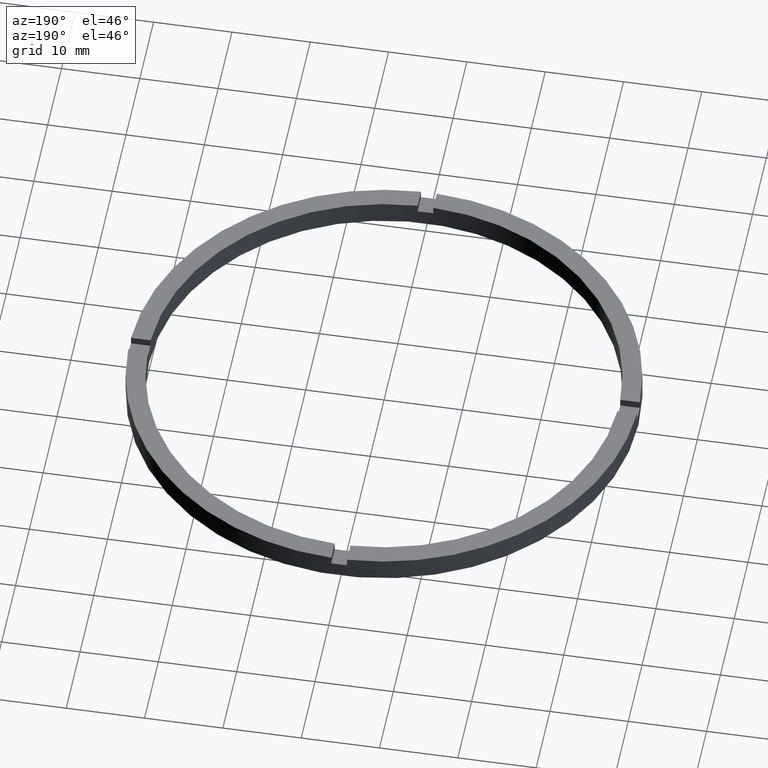
[diagram: clean part render]
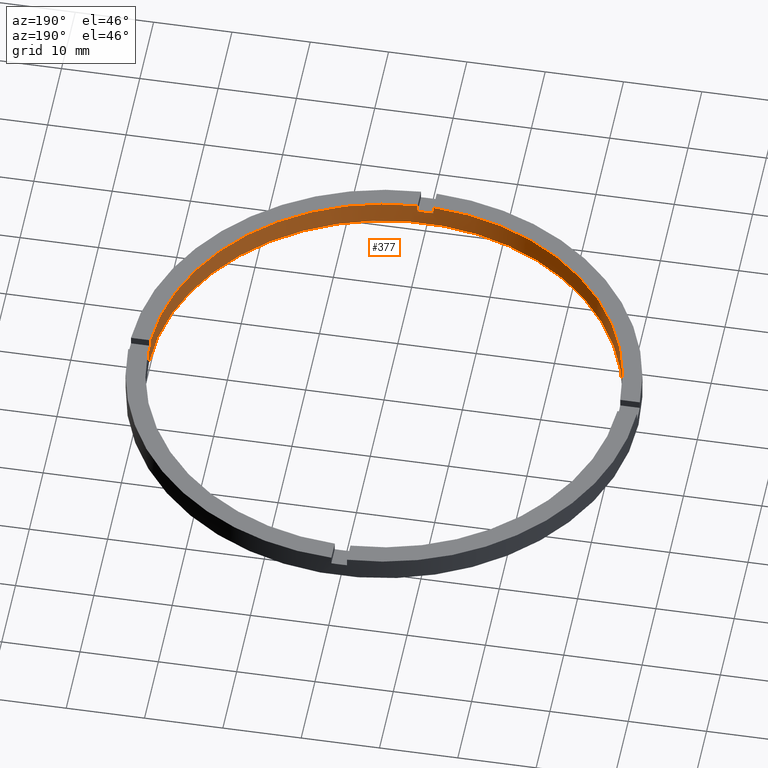
[diagram: same view with one face highlighted and labeled with its STEP entity id]
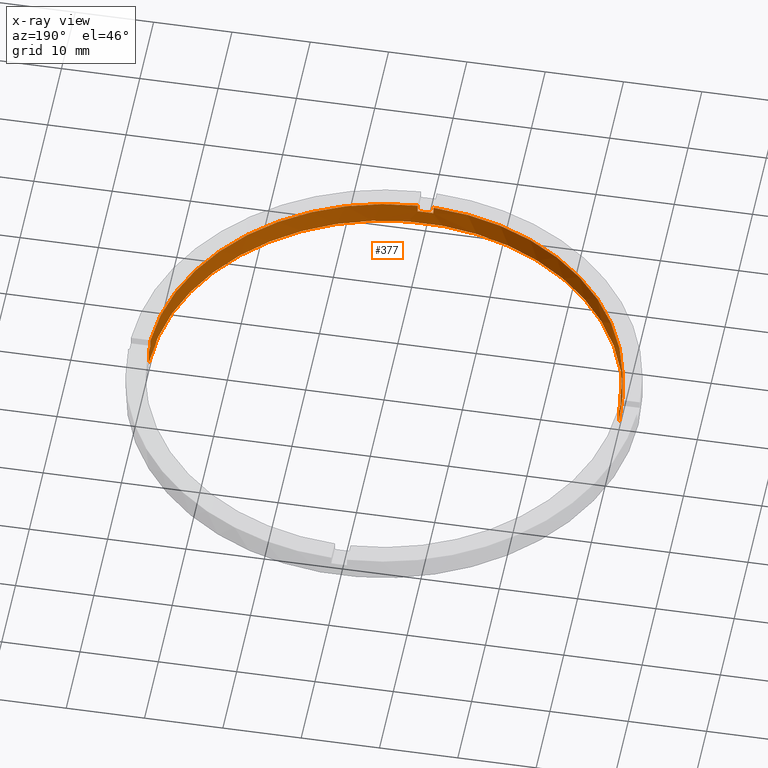
[diagram: x-ray of the same camera — body ghosted, the highlighted face saturated]
A machine part, auxiliary view. The second image highlights one B-rep face of the part: STEP entity #377.
The next image is the same camera in x-ray: the body ghosted, the highlighted face saturated — about 0% of this face is hidden behind the body in this view.
In plain terms, the highlighted cylindrical surface (partial cylindrical patch) has radius 30 mm, axis along (-0, -0, -1).
Its self-contained STEP definition (entity closure, byte-faithful):
#7 = CARTESIAN_POINT ( 'NONE',  ( -1.000000000000161648, -29.98332870112989212, 2.000000000000000000 ) ) ;
#14 = CARTESIAN_POINT ( 'NONE',  ( 0.000000000000000000, 0.000000000000000000, 0.000000000000000000 ) ) ;
#17 = DIRECTION ( 'NONE',  ( 0.000000000000000000, 0.000000000000000000, 1.000000000000000000 ) ) ;
#21 = VECTOR ( 'NONE', #762, 1000.000000000000000 ) ;
#33 = DIRECTION ( 'NONE',  ( 0.000000000000000000, 0.000000000000000000, 1.000000000000000000 ) ) ;
#34 = LINE ( 'NONE', #717, #310 ) ;
#39 = VECTOR ( 'NONE', #409, 1000.000000000000000 ) ;
#55 = LINE ( 'NONE', #413, #319 ) ;
#62 = DIRECTION ( 'NONE',  ( 0.000000000000000000, 0.000000000000000000, 1.000000000000000000 ) ) ;
#67 = DIRECTION ( 'NONE',  ( -1.000000000000000000, 0.000000000000000000, 0.000000000000000000 ) ) ;
#69 = ORIENTED_EDGE ( 'NONE', *, *, #490, .T. ) ;
#74 = EDGE_LOOP ( 'NONE', ( #694, #683, #577, #177, #69, #737, #479, #455, #714, #621, #173, #695 ) ) ;
#76 = CARTESIAN_POINT ( 'NONE',  ( 29.98332870112989212, -1.000000000000158762, 3.000000000000000000 ) ) ;
#84 = DIRECTION ( 'NONE',  ( 1.000000000000000000, 0.000000000000000000, 0.000000000000000000 ) ) ;
#91 = EDGE_CURVE ( 'NONE', #600, #677, #540, .T. ) ;
#110 = CARTESIAN_POINT ( 'NONE',  ( -29.98332870112989568, -1.000000000000025535, 3.000000000000000000 ) ) ;
#122 = CARTESIAN_POINT ( 'NONE',  ( -29.98332870112989568, -1.000000000000025535, 2.000000000000000000 ) ) ;
#127 = VECTOR ( 'NONE', #541, 1000.000000000000000 ) ;
#129 = AXIS2_PLACEMENT_3D ( 'NONE', #746, #783, #67 ) ;
#140 = CARTESIAN_POINT ( 'NONE',  ( 0.000000000000000000, 0.000000000000000000, 2.000000000000000000 ) ) ;
#141 = CARTESIAN_POINT ( 'NONE',  ( 29.98332870112989212, -1.000000000000158762, 3.000000000000000000 ) ) ;
#151 = VERTEX_POINT ( 'NONE', #691 ) ;
#155 = CARTESIAN_POINT ( 'NONE',  ( 0.000000000000000000, 0.000000000000000000, 2.000000000000000000 ) ) ;
#173 = ORIENTED_EDGE ( 'NONE', *, *, #661, .T. ) ;
#175 = EDGE_CURVE ( 'NONE', #452, #446, #545, .T. ) ;
#177 = ORIENTED_EDGE ( 'NONE', *, *, #265, .F. ) ;
#213 = EDGE_CURVE ( 'NONE', #727, #418, #562, .T. ) ;
#225 = CARTESIAN_POINT ( 'NONE',  ( 0.9999999999998384625, -29.98332870112990278, 3.000000000000000000 ) ) ;
#235 = CARTESIAN_POINT ( 'NONE',  ( 0.9999999999998384625, -29.98332870112990278, 2.000000000000000000 ) ) ;
#240 = CIRCLE ( 'NONE', #745, 30.00000000000000000 ) ;
#243 = AXIS2_PLACEMENT_3D ( 'NONE', #140, #405, #523 ) ;
#252 = DIRECTION ( 'NONE',  ( 1.000000000000000000, 0.000000000000000000, 0.000000000000000000 ) ) ;
#255 = DIRECTION ( 'NONE',  ( 1.000000000000000000, 0.000000000000000000, 0.000000000000000000 ) ) ;
#261 = AXIS2_PLACEMENT_3D ( 'NONE', #667, #62, #252 ) ;
#265 = EDGE_CURVE ( 'NONE', #351, #727, #55, .T. ) ;
#275 = VECTOR ( 'NONE', #282, 1000.000000000000000 ) ;
#282 = DIRECTION ( 'NONE',  ( -0.000000000000000000, -0.000000000000000000, -1.000000000000000000 ) ) ;
#304 = CIRCLE ( 'NONE', #527, 30.00000000000000000 ) ;
#309 = DIRECTION ( 'NONE',  ( 1.000000000000000000, 0.000000000000000000, 0.000000000000000000 ) ) ;
#310 = VECTOR ( 'NONE', #33, 1000.000000000000000 ) ;
#319 = VECTOR ( 'NONE', #348, 1000.000000000000000 ) ;
#339 = AXIS2_PLACEMENT_3D ( 'NONE', #14, #550, #309 ) ;
#341 = CARTESIAN_POINT ( 'NONE',  ( -30.00000000000000000, 0.000000000000000000, 2.000000000000000000 ) ) ;
#348 = DIRECTION ( 'NONE',  ( -0.000000000000000000, -0.000000000000000000, -1.000000000000000000 ) ) ;
#349 = CIRCLE ( 'NONE', #638, 30.00000000000000000 ) ;
#351 = VERTEX_POINT ( 'NONE', #341 ) ;
#376 = CIRCLE ( 'NONE', #243, 30.00000000000000000 ) ;
#377 = ADVANCED_FACE ( 'NONE', ( #632 ), #634, .F. ) ;
#396 = CARTESIAN_POINT ( 'NONE',  ( 0.000000000000000000, 0.000000000000000000, 2.000000000000000000 ) ) ;
#398 = EDGE_CURVE ( 'NONE', #631, #673, #376, .T. ) ;
#405 = DIRECTION ( 'NONE',  ( 0.000000000000000000, 0.000000000000000000, 1.000000000000000000 ) ) ;
#409 = DIRECTION ( 'NONE',  ( -0.000000000000000000, -0.000000000000000000, -1.000000000000000000 ) ) ;
#413 = CARTESIAN_POINT ( 'NONE',  ( -30.00000000000000000, 0.000000000000000000, 3.000000000000000000 ) ) ;
#415 = CARTESIAN_POINT ( 'NONE',  ( -29.98332870112989568, -1.000000000000025535, 3.000000000000000000 ) ) ;
#418 = VERTEX_POINT ( 'NONE', #492 ) ;
#429 = DIRECTION ( 'NONE',  ( -0.000000000000000000, 0.000000000000000000, 1.000000000000000000 ) ) ;
#446 = VERTEX_POINT ( 'NONE', #235 ) ;
#452 = VERTEX_POINT ( 'NONE', #468 ) ;
#455 = ORIENTED_EDGE ( 'NONE', *, *, #484, .F. ) ;
#457 = VERTEX_POINT ( 'NONE', #141 ) ;
#468 = CARTESIAN_POINT ( 'NONE',  ( 0.9999999999998384625, -29.98332870112990278, 3.000000000000000000 ) ) ;
#479 = ORIENTED_EDGE ( 'NONE', *, *, #663, .T. ) ;
#484 = EDGE_CURVE ( 'NONE', #705, #151, #34, .T. ) ;
#490 = EDGE_CURVE ( 'NONE', #351, #677, #304, .T. ) ;
#492 = CARTESIAN_POINT ( 'NONE',  ( 30.00000000000000000, 3.673940397442059178E-15, 0.000000000000000000 ) ) ;
#504 = EDGE_CURVE ( 'NONE', #673, #418, #569, .T. ) ;
#514 = CIRCLE ( 'NONE', #261, 30.00000000000000000 ) ;
#523 = DIRECTION ( 'NONE',  ( 1.000000000000000000, 0.000000000000000000, 0.000000000000000000 ) ) ;
#527 = AXIS2_PLACEMENT_3D ( 'NONE', #155, #17, #84 ) ;
#535 = CARTESIAN_POINT ( 'NONE',  ( 30.00000000000000000, 3.673940397442059178E-15, 3.000000000000000000 ) ) ;
#540 = LINE ( 'NONE', #110, #275 ) ;
#541 = DIRECTION ( 'NONE',  ( 0.000000000000000000, 0.000000000000000000, 1.000000000000000000 ) ) ;
#545 = LINE ( 'NONE', #225, #21 ) ;
#546 = CARTESIAN_POINT ( 'NONE',  ( 30.00000000000000000, 3.673940397442059178E-15, 2.000000000000000000 ) ) ;
#550 = DIRECTION ( 'NONE',  ( 0.000000000000000000, 0.000000000000000000, 1.000000000000000000 ) ) ;
#560 = LINE ( 'NONE', #76, #127 ) ;
#562 = CIRCLE ( 'NONE', #339, 30.00000000000000000 ) ;
#569 = LINE ( 'NONE', #535, #39 ) ;
#577 = ORIENTED_EDGE ( 'NONE', *, *, #213, .F. ) ;
#600 = VERTEX_POINT ( 'NONE', #415 ) ;
#614 = DIRECTION ( 'NONE',  ( 1.000000000000000000, 0.000000000000000000, 0.000000000000000000 ) ) ;
#621 = ORIENTED_EDGE ( 'NONE', *, *, #175, .F. ) ;
#631 = VERTEX_POINT ( 'NONE', #754 ) ;
#632 = FACE_OUTER_BOUND ( 'NONE', #74, .T. ) ;
#634 = CYLINDRICAL_SURFACE ( 'NONE', #129, 30.00000000000000000 ) ;
#636 = CARTESIAN_POINT ( 'NONE',  ( 0.000000000000000000, 0.000000000000000000, 3.000000000000000000 ) ) ;
#638 = AXIS2_PLACEMENT_3D ( 'NONE', #396, #429, #255 ) ;
#661 = EDGE_CURVE ( 'NONE', #452, #457, #240, .T. ) ;
#663 = EDGE_CURVE ( 'NONE', #600, #151, #514, .T. ) ;
#667 = CARTESIAN_POINT ( 'NONE',  ( 0.000000000000000000, 0.000000000000000000, 3.000000000000000000 ) ) ;
#673 = VERTEX_POINT ( 'NONE', #546 ) ;
#677 = VERTEX_POINT ( 'NONE', #122 ) ;
#678 = DIRECTION ( 'NONE',  ( 0.000000000000000000, 0.000000000000000000, 1.000000000000000000 ) ) ;
#683 = ORIENTED_EDGE ( 'NONE', *, *, #504, .T. ) ;
#691 = CARTESIAN_POINT ( 'NONE',  ( -1.000000000000161648, -29.98332870112989212, 3.000000000000000000 ) ) ;
#694 = ORIENTED_EDGE ( 'NONE', *, *, #398, .T. ) ;
#695 = ORIENTED_EDGE ( 'NONE', *, *, #779, .F. ) ;
#705 = VERTEX_POINT ( 'NONE', #7 ) ;
#714 = ORIENTED_EDGE ( 'NONE', *, *, #755, .T. ) ;
#717 = CARTESIAN_POINT ( 'NONE',  ( -1.000000000000161648, -29.98332870112989212, 3.000000000000000000 ) ) ;
#727 = VERTEX_POINT ( 'NONE', #750 ) ;
#737 = ORIENTED_EDGE ( 'NONE', *, *, #91, .F. ) ;
#745 = AXIS2_PLACEMENT_3D ( 'NONE', #636, #678, #614 ) ;
#746 = CARTESIAN_POINT ( 'NONE',  ( 0.000000000000000000, 0.000000000000000000, 3.000000000000000000 ) ) ;
#750 = CARTESIAN_POINT ( 'NONE',  ( -30.00000000000000000, 0.000000000000000000, 0.000000000000000000 ) ) ;
#754 = CARTESIAN_POINT ( 'NONE',  ( 29.98332870112989212, -1.000000000000158762, 2.000000000000000000 ) ) ;
#755 = EDGE_CURVE ( 'NONE', #705, #446, #349, .T. ) ;
#762 = DIRECTION ( 'NONE',  ( -0.000000000000000000, -0.000000000000000000, -1.000000000000000000 ) ) ;
#779 = EDGE_CURVE ( 'NONE', #631, #457, #560, .T. ) ;
#783 = DIRECTION ( 'NONE',  ( -0.000000000000000000, -0.000000000000000000, -1.000000000000000000 ) ) ;